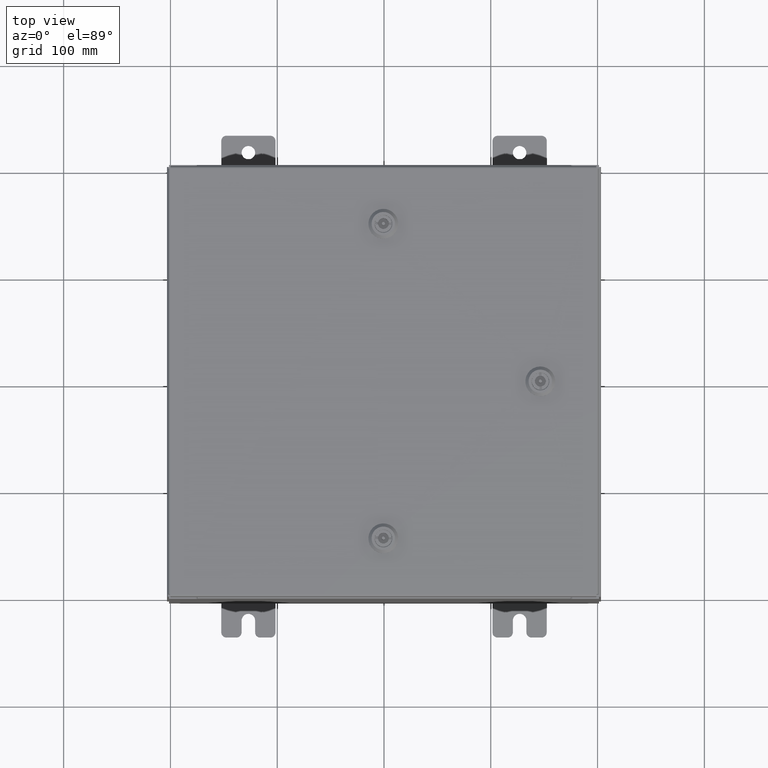
[diagram: clean part render]
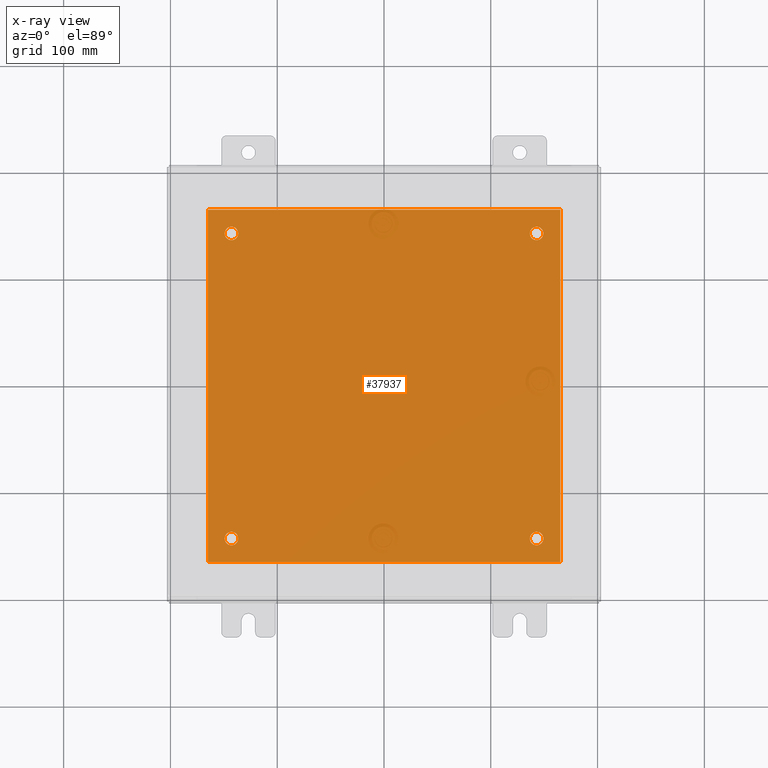
[diagram: x-ray — body ghosted, one internal face saturated and labeled with its STEP entity id]
A machine part, top view, then the same camera in x-ray: the body is ghosted and one INTERNAL B-rep face — a face not visible from any outside direction — is saturated and labeled: STEP entity #37937.
In plain terms, the highlighted planar face has unit normal (0, 0, -1).
Its self-contained STEP definition (entity closure, byte-faithful):
#350 = CARTESIAN_POINT ( 'NONE',  ( 5.875000000000000900, -5.625000000000000900, -0.1039999999999999800 ) ) ;
#908 = DIRECTION ( 'NONE',  ( -0.0000000000000000000, -0.0000000000000000000, 1.000000000000000000 ) ) ;
#1904 = CIRCLE ( 'NONE', #50854, 0.2499999999999987000 ) ;
#2219 = AXIS2_PLACEMENT_3D ( 'NONE', #51084, #22143, #55914 ) ;
#2390 = CARTESIAN_POINT ( 'NONE',  ( 5.375000000000003600, -5.625000000000000900, -0.1039999999999999800 ) ) ;
#2831 = CIRCLE ( 'NONE', #2219, 0.2499999999999987000 ) ;
#3004 = CIRCLE ( 'NONE', #53911, 0.2499999999999998100 ) ;
#5178 = ORIENTED_EDGE ( 'NONE', *, *, #47713, .T. ) ;
#5380 = CIRCLE ( 'NONE', #27671, 0.2499999999999987000 ) ;
#5647 = VECTOR ( 'NONE', #8581, 39.37007874015748100 ) ;
#5753 = LINE ( 'NONE', #6208, #31392 ) ;
#6208 = CARTESIAN_POINT ( 'NONE',  ( -6.500000000000000000, -6.499999999999999100, -0.1039999999999999800 ) ) ;
#6328 = CIRCLE ( 'NONE', #19667, 0.2499999999999987000 ) ;
#6417 = FACE_OUTER_BOUND ( 'NONE', #19627, .T. ) ;
#6691 = CARTESIAN_POINT ( 'NONE',  ( -6.500000000000000000, 6.500000000000000900, -0.1039999999999999800 ) ) ;
#6932 = ORIENTED_EDGE ( 'NONE', *, *, #31165, .T. ) ;
#7519 = CARTESIAN_POINT ( 'NONE',  ( -6.500000000000000000, 6.500000000000000900, -0.1039999999999999800 ) ) ;
#8581 = DIRECTION ( 'NONE',  ( 0.0000000000000000000, 1.000000000000000000, 0.0000000000000000000 ) ) ;
#8807 = EDGE_LOOP ( 'NONE', ( #60380, #38138 ) ) ;
#9956 = AXIS2_PLACEMENT_3D ( 'NONE', #29817, #908, #34682 ) ;
#10173 = LINE ( 'NONE', #6691, #34364 ) ;
#10443 = ORIENTED_EDGE ( 'NONE', *, *, #18638, .F. ) ;
#10840 = EDGE_CURVE ( 'NONE', #40036, #57389, #5380, .T. ) ;
#11036 = ORIENTED_EDGE ( 'NONE', *, *, #24904, .T. ) ;
#11114 = CARTESIAN_POINT ( 'NONE',  ( 5.625000000000002700, 5.625000000000000900, -0.1039999999999999800 ) ) ;
#11545 = DIRECTION ( 'NONE',  ( -1.000000000000000000, -0.0000000000000000000, -0.0000000000000000000 ) ) ;
#11935 = CARTESIAN_POINT ( 'NONE',  ( -5.625000000000002700, 5.625000000000000900, -0.1039999999999999800 ) ) ;
#12431 = EDGE_CURVE ( 'NONE', #39078, #15811, #12780, .T. ) ;
#12780 = CIRCLE ( 'NONE', #9956, 0.2499999999999998100 ) ;
#12890 = DIRECTION ( 'NONE',  ( -0.0000000000000000000, -0.0000000000000000000, 1.000000000000000000 ) ) ;
#13616 = EDGE_CURVE ( 'NONE', #59011, #52817, #21018, .T. ) ;
#15011 = CARTESIAN_POINT ( 'NONE',  ( -5.625000000000002700, 5.625000000000000900, -0.1039999999999999800 ) ) ;
#15811 = VERTEX_POINT ( 'NONE', #22785 ) ;
#15947 = DIRECTION ( 'NONE',  ( -1.000000000000000000, 0.0000000000000000000, 0.0000000000000000000 ) ) ;
#16771 = DIRECTION ( 'NONE',  ( -1.000000000000000000, 0.0000000000000000000, 0.0000000000000000000 ) ) ;
#17062 = CARTESIAN_POINT ( 'NONE',  ( 5.625000000000002700, -5.625000000000000900, -0.1039999999999999800 ) ) ;
#17272 = DIRECTION ( 'NONE',  ( -0.0000000000000000000, -0.0000000000000000000, 1.000000000000000000 ) ) ;
#18249 = CARTESIAN_POINT ( 'NONE',  ( -5.875000000000001800, 5.625000000000000900, -0.1039999999999999800 ) ) ;
#18638 = EDGE_CURVE ( 'NONE', #52817, #26492, #5753, .T. ) ;
#19245 = FACE_BOUND ( 'NONE', #57208, .T. ) ;
#19283 = EDGE_LOOP ( 'NONE', ( #41730, #21881 ) ) ;
#19627 = EDGE_LOOP ( 'NONE', ( #47930, #10443, #38329, #29074 ) ) ;
#19667 = AXIS2_PLACEMENT_3D ( 'NONE', #46190, #17272, #51070 ) ;
#19898 = DIRECTION ( 'NONE',  ( -1.000000000000000000, 0.0000000000000000000, 0.0000000000000000000 ) ) ;
#21018 = LINE ( 'NONE', #47896, #46686 ) ;
#21881 = ORIENTED_EDGE ( 'NONE', *, *, #29892, .T. ) ;
#21919 = DIRECTION ( 'NONE',  ( -1.000000000000000000, 0.0000000000000000000, 0.0000000000000000000 ) ) ;
#22143 = DIRECTION ( 'NONE',  ( -0.0000000000000000000, -0.0000000000000000000, 1.000000000000000000 ) ) ;
#22785 = CARTESIAN_POINT ( 'NONE',  ( -5.875000000000001800, -5.625000000000000900, -0.1039999999999999800 ) ) ;
#23442 = CIRCLE ( 'NONE', #40477, 0.2499999999999998100 ) ;
#24904 = EDGE_CURVE ( 'NONE', #57389, #40036, #6328, .T. ) ;
#25955 = VERTEX_POINT ( 'NONE', #58623 ) ;
#26492 = VERTEX_POINT ( 'NONE', #55184 ) ;
#26728 = LINE ( 'NONE', #42302, #5647 ) ;
#27671 = AXIS2_PLACEMENT_3D ( 'NONE', #11114, #44881, #15947 ) ;
#28180 = CARTESIAN_POINT ( 'NONE',  ( -6.500000000000000000, -6.499999999999999100, -0.1039999999999999800 ) ) ;
#28245 = DIRECTION ( 'NONE',  ( -1.000000000000000000, 0.0000000000000000000, -0.0000000000000000000 ) ) ;
#29074 = ORIENTED_EDGE ( 'NONE', *, *, #38238, .F. ) ;
#29817 = CARTESIAN_POINT ( 'NONE',  ( -5.625000000000002700, -5.625000000000000900, -0.1039999999999999800 ) ) ;
#29892 = EDGE_CURVE ( 'NONE', #15811, #39078, #3004, .T. ) ;
#30678 = AXIS2_PLACEMENT_3D ( 'NONE', #54801, #57148, #28245 ) ;
#31165 = EDGE_CURVE ( 'NONE', #32665, #49886, #32366, .T. ) ;
#31392 = VECTOR ( 'NONE', #39947, 39.37007874015748100 ) ;
#32079 = FACE_BOUND ( 'NONE', #56873, .T. ) ;
#32366 = CIRCLE ( 'NONE', #56745, 0.2499999999999998100 ) ;
#32665 = VERTEX_POINT ( 'NONE', #18249 ) ;
#34364 = VECTOR ( 'NONE', #11545, 39.37007874015748100 ) ;
#34682 = DIRECTION ( 'NONE',  ( -1.000000000000000000, 0.0000000000000000000, 0.0000000000000000000 ) ) ;
#36212 = ORIENTED_EDGE ( 'NONE', *, *, #10840, .T. ) ;
#37937 = ADVANCED_FACE ( 'NONE', ( #44909, #57735, #32079, #19245, #6417 ), #50156, .T. ) ;
#38138 = ORIENTED_EDGE ( 'NONE', *, *, #42186, .T. ) ;
#38238 = EDGE_CURVE ( 'NONE', #25955, #59011, #10173, .T. ) ;
#38329 = ORIENTED_EDGE ( 'NONE', *, *, #13616, .F. ) ;
#38581 = EDGE_CURVE ( 'NONE', #26492, #25955, #26728, .T. ) ;
#39078 = VERTEX_POINT ( 'NONE', #51264 ) ;
#39947 = DIRECTION ( 'NONE',  ( 1.000000000000000000, 0.0000000000000000000, 0.0000000000000000000 ) ) ;
#40036 = VERTEX_POINT ( 'NONE', #59004 ) ;
#40477 = AXIS2_PLACEMENT_3D ( 'NONE', #15011, #48808, #19898 ) ;
#41730 = ORIENTED_EDGE ( 'NONE', *, *, #12431, .T. ) ;
#41810 = CARTESIAN_POINT ( 'NONE',  ( -5.625000000000002700, -5.625000000000000900, -0.1039999999999999800 ) ) ;
#42186 = EDGE_CURVE ( 'NONE', #61171, #42393, #1904, .T. ) ;
#42302 = CARTESIAN_POINT ( 'NONE',  ( 6.500000000000000000, -6.499999999999999100, -0.1039999999999999800 ) ) ;
#42393 = VERTEX_POINT ( 'NONE', #350 ) ;
#42802 = DIRECTION ( 'NONE',  ( -0.0000000000000000000, -1.000000000000000000, -0.0000000000000000000 ) ) ;
#44881 = DIRECTION ( 'NONE',  ( -0.0000000000000000000, -0.0000000000000000000, 1.000000000000000000 ) ) ;
#44909 = FACE_BOUND ( 'NONE', #19283, .T. ) ;
#45683 = CARTESIAN_POINT ( 'NONE',  ( 5.375000000000003600, 5.625000000000000900, -0.1039999999999999800 ) ) ;
#45706 = DIRECTION ( 'NONE',  ( -0.0000000000000000000, -0.0000000000000000000, 1.000000000000000000 ) ) ;
#46190 = CARTESIAN_POINT ( 'NONE',  ( 5.625000000000002700, 5.625000000000000900, -0.1039999999999999800 ) ) ;
#46650 = DIRECTION ( 'NONE',  ( -1.000000000000000000, 0.0000000000000000000, 0.0000000000000000000 ) ) ;
#46686 = VECTOR ( 'NONE', #42802, 39.37007874015748100 ) ;
#47713 = EDGE_CURVE ( 'NONE', #49886, #32665, #23442, .T. ) ;
#47896 = CARTESIAN_POINT ( 'NONE',  ( -6.500000000000000000, -6.499999999999999100, -0.1039999999999999800 ) ) ;
#47930 = ORIENTED_EDGE ( 'NONE', *, *, #38581, .F. ) ;
#48808 = DIRECTION ( 'NONE',  ( -0.0000000000000000000, -0.0000000000000000000, 1.000000000000000000 ) ) ;
#49886 = VERTEX_POINT ( 'NONE', #58215 ) ;
#50156 = PLANE ( 'NONE',  #30678 ) ;
#50854 = AXIS2_PLACEMENT_3D ( 'NONE', #17062, #50859, #21919 ) ;
#50859 = DIRECTION ( 'NONE',  ( -0.0000000000000000000, -0.0000000000000000000, 1.000000000000000000 ) ) ;
#51070 = DIRECTION ( 'NONE',  ( -1.000000000000000000, 0.0000000000000000000, 0.0000000000000000000 ) ) ;
#51084 = CARTESIAN_POINT ( 'NONE',  ( 5.625000000000002700, -5.625000000000000900, -0.1039999999999999800 ) ) ;
#51264 = CARTESIAN_POINT ( 'NONE',  ( -5.375000000000002700, -5.625000000000000900, -0.1039999999999999800 ) ) ;
#52573 = EDGE_CURVE ( 'NONE', #42393, #61171, #2831, .T. ) ;
#52817 = VERTEX_POINT ( 'NONE', #28180 ) ;
#53911 = AXIS2_PLACEMENT_3D ( 'NONE', #41810, #12890, #46650 ) ;
#54801 = CARTESIAN_POINT ( 'NONE',  ( 0.0000000000000000000, 0.0000000000000000000, -0.1039999999999999800 ) ) ;
#55184 = CARTESIAN_POINT ( 'NONE',  ( 6.500000000000000000, -6.499999999999999100, -0.1039999999999999800 ) ) ;
#55914 = DIRECTION ( 'NONE',  ( -1.000000000000000000, 0.0000000000000000000, 0.0000000000000000000 ) ) ;
#56745 = AXIS2_PLACEMENT_3D ( 'NONE', #11935, #45706, #16771 ) ;
#56873 = EDGE_LOOP ( 'NONE', ( #36212, #11036 ) ) ;
#57148 = DIRECTION ( 'NONE',  ( 0.0000000000000000000, 0.0000000000000000000, -1.000000000000000000 ) ) ;
#57208 = EDGE_LOOP ( 'NONE', ( #5178, #6932 ) ) ;
#57389 = VERTEX_POINT ( 'NONE', #45683 ) ;
#57735 = FACE_BOUND ( 'NONE', #8807, .T. ) ;
#58215 = CARTESIAN_POINT ( 'NONE',  ( -5.375000000000002700, 5.625000000000000900, -0.1039999999999999800 ) ) ;
#58623 = CARTESIAN_POINT ( 'NONE',  ( 6.500000000000000000, 6.500000000000000900, -0.1039999999999999800 ) ) ;
#59004 = CARTESIAN_POINT ( 'NONE',  ( 5.875000000000000900, 5.625000000000000900, -0.1039999999999999800 ) ) ;
#59011 = VERTEX_POINT ( 'NONE', #7519 ) ;
#60380 = ORIENTED_EDGE ( 'NONE', *, *, #52573, .T. ) ;
#61171 = VERTEX_POINT ( 'NONE', #2390 ) ;